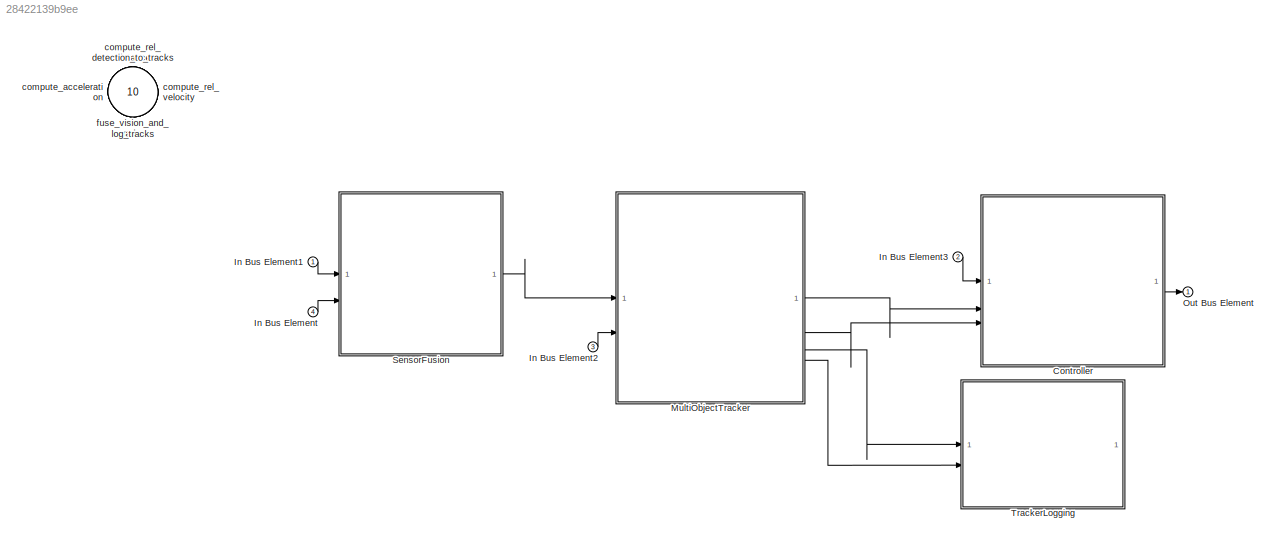
MODEL slx_28422139b9ee
KIND model
CONFIG AbsTol = auto
CONFIG EnableMultiTasking = off
CONFIG FixedStep = auto
CONFIG MaxStep = auto
CONFIG MinStep = auto
CONFIG RelTol = 1e-3
CONFIG SampleTimeConstraint = Unconstrained
CONFIG SolverName = FixedStepDiscrete
CONFIG StartTime = 0.0
CONFIG StopTime = 10.0
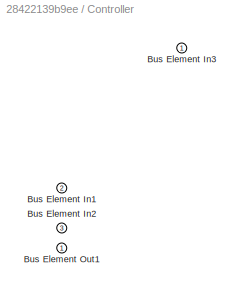
BLOCK [SubSystem] Controller
  PortSchema = {"entries":[{"content":{"headerSize":26,"margin":15,"minimumSpacing":25,"sides":[{"content":{"connectorIds":["In1","In2","In3"]},"type":"ConnectorPlacement.EquallySpacedRectSide","uuid":"0d61c93e-5417-4b7d-8fa9-42b8d65d8ca8"},{"content":{"connectorIds":["Out1"],"side":"RIGHT"},"type":"ConnectorPlacement.EquallySpacedRectSide","uuid":"7aff60b2-8d48-4daa-8043-31aef3573339"},{"content":{"side":"TOP"}...<+282ch>
BLOCK [Inport] Controller/Bus Element In1
  Port = 2
BLOCK [Inport] Controller/Bus Element In2
  Port = 3
BLOCK [Inport] Controller/Bus Element In3
BLOCK [Outport] Controller/Bus Element Out1
BLOCK [Inport] In Bus Element
  Port = 4
BLOCK [Inport] In Bus Element1
BLOCK [Inport] In Bus Element2
  Port = 3
BLOCK [Inport] In Bus Element3
  Port = 2
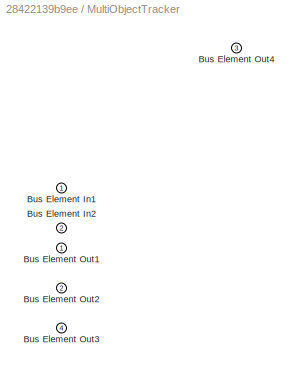
BLOCK [SubSystem] MultiObjectTracker
  PortSchema = {"entries":[{"content":{"headerSize":26,"margin":15,"minimumSpacing":25,"sides":[{"content":{"connectorIds":["In1","In2"]},"type":"ConnectorPlacement.EquallySpacedRectSide","uuid":"0d61c93e-5417-4b7d-8fa9-42b8d65d8ca8"},{"content":{"connectorIds":["Out1","Out2","Out3","Out4"],"side":"RIGHT"},"type":"ConnectorPlacement.EquallySpacedRectSide","uuid":"7aff60b2-8d48-4daa-8043-31aef3573339"},{"content"...<+297ch>
BLOCK [Inport] MultiObjectTracker/Bus Element In1
BLOCK [Inport] MultiObjectTracker/Bus Element In2
  Port = 2
BLOCK [Outport] MultiObjectTracker/Bus Element Out1
BLOCK [Outport] MultiObjectTracker/Bus Element Out2
  Port = 2
BLOCK [Outport] MultiObjectTracker/Bus Element Out3
  Port = 4
BLOCK [Outport] MultiObjectTracker/Bus Element Out4
  Port = 3
BLOCK [Outport] Out Bus Element
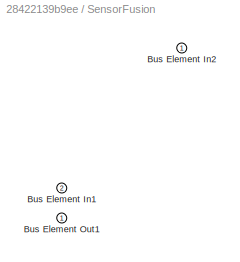
BLOCK [SubSystem] SensorFusion
  PortSchema = {"entries":[{"content":{"headerSize":26,"margin":15,"minimumSpacing":25,"sides":[{"content":{"connectorIds":["In1","In2"]},"type":"ConnectorPlacement.EquallySpacedRectSide","uuid":"0d61c93e-5417-4b7d-8fa9-42b8d65d8ca8"},{"content":{"connectorIds":["Out1"],"side":"RIGHT"},"type":"ConnectorPlacement.EquallySpacedRectSide","uuid":"7aff60b2-8d48-4daa-8043-31aef3573339"},{"content":{"side":"TOP"},"type...<+276ch>
BLOCK [Inport] SensorFusion/Bus Element In1
  Port = 2
BLOCK [Inport] SensorFusion/Bus Element In2
BLOCK [Outport] SensorFusion/Bus Element Out1
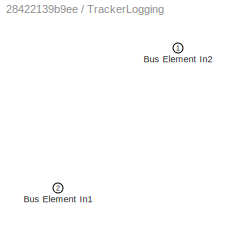
BLOCK [SubSystem] TrackerLogging
  PortSchema = {"entries":[{"content":{"headerSize":26,"margin":15,"minimumSpacing":25,"sides":[{"content":{"connectorIds":["In1","In2"]},"type":"ConnectorPlacement.EquallySpacedRectSide","uuid":"0d61c93e-5417-4b7d-8fa9-42b8d65d8ca8"},{"content":{"side":"RIGHT"},"type":"ConnectorPlacement.EquallySpacedRectSide","uuid":"7aff60b2-8d48-4daa-8043-31aef3573339"},{"content":{"side":"TOP"},"type":"ConnectorPlacement.Eq...<+252ch>
BLOCK [Inport] TrackerLogging/Bus Element In1
  Port = 2
BLOCK [Inport] TrackerLogging/Bus Element In2
BLOCK [Inport] compute_acceleration
  OutputFunctionCall = on
  Port = 8
  SampleTime = 0.1
BLOCK [Inport] compute_rel_distance
  OutputFunctionCall = on
  Port = 6
  SampleTime = 0.1
BLOCK [Inport] compute_rel_velocity
  OutputFunctionCall = on
  Port = 7
  SampleTime = 0.1
BLOCK [Inport] detection_to_tracks
  OutputFunctionCall = on
  Port = 9
  SampleTime = 0.1
BLOCK [Inport] fuse_vision_and_radar
  OutputFunctionCall = on
  Port = 5
  SampleTime = 0.1
BLOCK [Inport] log_tracks
  OutputFunctionCall = on
  Port = 10
  SampleTime = 0.2
LINE Controller:1 -> Out Bus Element:1
LINE In Bus Element1:1 -> SensorFusion:1
LINE In Bus Element2:1 -> MultiObjectTracker:2
LINE In Bus Element3:1 -> Controller:1
LINE In Bus Element:1 -> SensorFusion:2
LINE MultiObjectTracker:1 -> Controller:2
LINE MultiObjectTracker:2 -> Controller:3
LINE MultiObjectTracker:3 -> TrackerLogging:1
LINE MultiObjectTracker:4 -> TrackerLogging:2
LINE SensorFusion:1 -> MultiObjectTracker:1
